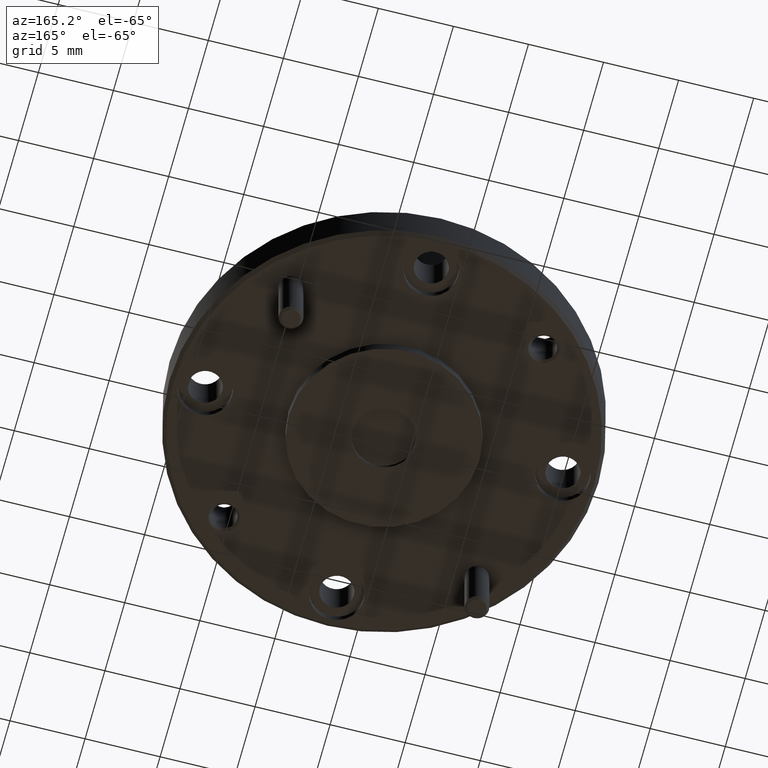
[diagram: clean part render]
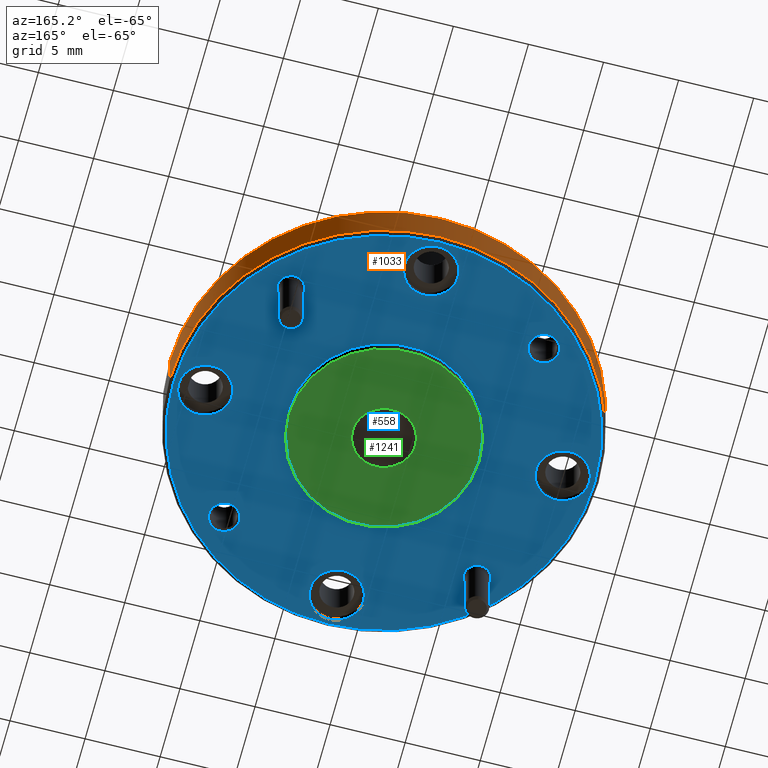
[diagram: same view with three faces highlighted in distinct colors, each labeled with its STEP entity id]
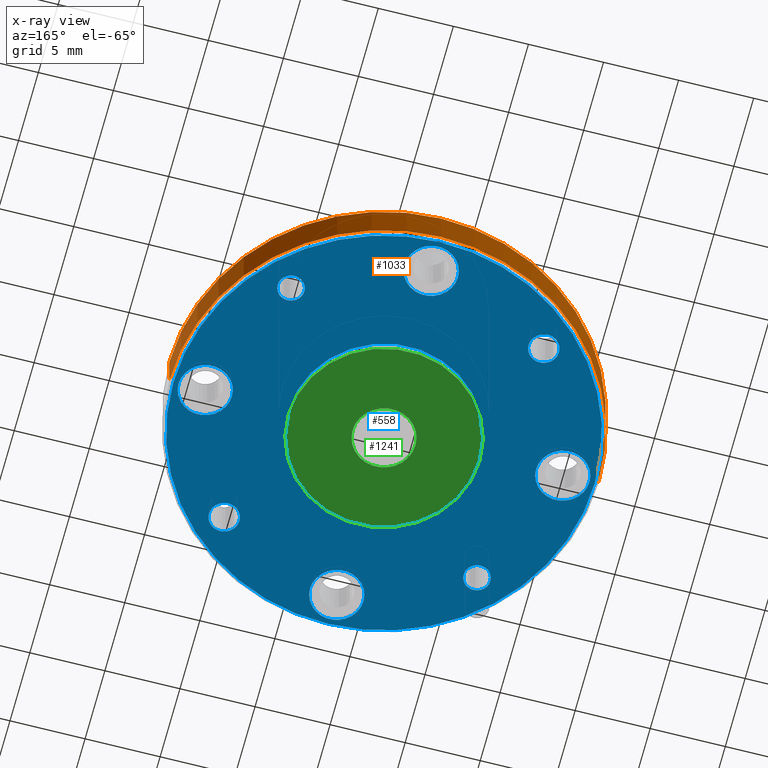
[diagram: x-ray of the same camera — body ghosted, the three highlighted faces saturated]
A machine part, auxiliary view with three faces highlighted in distinct colors.
The next image is the same camera in x-ray (body ghosted, the three faces saturated) — at least one of them is partly hidden behind the body in this view.
Their STEP definitions:

[orange] entity #1033 — the highlighted cylindrical surface (partial cylindrical patch) has radius 14.2875 mm, axis along (-0, -0, 1).
#51 = ORIENTED_EDGE ( 'NONE', *, *, #1716, .F. ) ;
#108 = DIRECTION ( 'NONE',  ( 0.0000000000000000000, 0.0000000000000000000, -1.000000000000000000 ) ) ;
#236 = CARTESIAN_POINT ( 'NONE',  ( 0.05127403736761039500, 0.5322466351666983500, 4.129873547652602300 ) ) ;
#287 = EDGE_LOOP ( 'NONE', ( #974, #866, #381, #51 ) ) ;
#358 = FACE_OUTER_BOUND ( 'NONE', #287, .T. ) ;
#361 = CIRCLE ( 'NONE', #556, 0.5625000000000000000 ) ;
#368 = DIRECTION ( 'NONE',  ( -0.0000000000000000000, -0.0000000000000000000, 1.000000000000000000 ) ) ;
#381 = ORIENTED_EDGE ( 'NONE', *, *, #1962, .T. ) ;
#389 = LINE ( 'NONE', #1621, #744 ) ;
#404 = DIRECTION ( 'NONE',  ( -0.0000000000000000000, -0.0000000000000000000, 1.000000000000000000 ) ) ;
#516 = VECTOR ( 'NONE', #1520, 39.37007874015748100 ) ;
#538 = CARTESIAN_POINT ( 'NONE',  ( 0.05127403736761039500, 0.5322466351666983500, 0.3353271406262704500 ) ) ;
#556 = AXIS2_PLACEMENT_3D ( 'NONE', #538, #368, #1003 ) ;
#637 = EDGE_CURVE ( 'NONE', #1550, #1084, #361, .T. ) ;
#744 = VECTOR ( 'NONE', #1650, 39.37007874015748100 ) ;
#866 = ORIENTED_EDGE ( 'NONE', *, *, #1667, .T. ) ;
#886 = VERTEX_POINT ( 'NONE', #1340 ) ;
#974 = ORIENTED_EDGE ( 'NONE', *, *, #637, .T. ) ;
#1003 = DIRECTION ( 'NONE',  ( 1.000000000000000000, 0.0000000000000000000, 0.0000000000000000000 ) ) ;
#1033 = ADVANCED_FACE ( 'NONE', ( #358 ), #1747, .T. ) ;
#1066 = CARTESIAN_POINT ( 'NONE',  ( 0.05127403736761039500, 0.5322466351666983500, 0.4453271406262706600 ) ) ;
#1084 = VERTEX_POINT ( 'NONE', #1838 ) ;
#1208 = DIRECTION ( 'NONE',  ( -1.000000000000000000, 0.0000000000000000000, 0.0000000000000000000 ) ) ;
#1262 = CARTESIAN_POINT ( 'NONE',  ( 0.6137740373676103800, 0.5322466351666983500, 0.3353271406262704500 ) ) ;
#1340 = CARTESIAN_POINT ( 'NONE',  ( -0.5112259626323896200, 0.5322466351666983500, 0.4453271406262706600 ) ) ;
#1351 = CIRCLE ( 'NONE', #1647, 0.5625000000000000000 ) ;
#1363 = LINE ( 'NONE', #1983, #516 ) ;
#1520 = DIRECTION ( 'NONE',  ( -0.0000000000000000000, -0.0000000000000000000, 1.000000000000000000 ) ) ;
#1550 = VERTEX_POINT ( 'NONE', #1262 ) ;
#1621 = CARTESIAN_POINT ( 'NONE',  ( -0.5112259626323896200, 0.5322466351666983500, 4.129873547652602300 ) ) ;
#1647 = AXIS2_PLACEMENT_3D ( 'NONE', #1066, #108, #1208 ) ;
#1650 = DIRECTION ( 'NONE',  ( -0.0000000000000000000, -0.0000000000000000000, 1.000000000000000000 ) ) ;
#1667 = EDGE_CURVE ( 'NONE', #1084, #886, #389, .T. ) ;
#1716 = EDGE_CURVE ( 'NONE', #1550, #1864, #1363, .T. ) ;
#1747 = CYLINDRICAL_SURFACE ( 'NONE', #2006, 0.5625000000000000000 ) ;
#1838 = CARTESIAN_POINT ( 'NONE',  ( -0.5112259626323896200, 0.5322466351666983500, 0.3353271406262704500 ) ) ;
#1864 = VERTEX_POINT ( 'NONE', #2023 ) ;
#1962 = EDGE_CURVE ( 'NONE', #886, #1864, #1351, .T. ) ;
#1977 = DIRECTION ( 'NONE',  ( 1.000000000000000000, 0.0000000000000000000, 0.0000000000000000000 ) ) ;
#1983 = CARTESIAN_POINT ( 'NONE',  ( 0.6137740373676103800, 0.5322466351666983500, 4.129873547652602300 ) ) ;
#2006 = AXIS2_PLACEMENT_3D ( 'NONE', #236, #404, #1977 ) ;
#2023 = CARTESIAN_POINT ( 'NONE',  ( 0.6137740373676103800, 0.5322466351666983500, 0.4453271406262706600 ) ) ;

[blue] entity #558 — the highlighted planar face has unit normal (0, -0, 1).
#1 = EDGE_CURVE ( 'NONE', #617, #1527, #1108, .T. ) ;
#3 = VERTEX_POINT ( 'NONE', #1561 ) ;
#17 = CARTESIAN_POINT ( 'NONE',  ( 0.3827303410488044900, 0.2007903314855041800, 0.3253271406262702700 ) ) ;
#45 = VERTEX_POINT ( 'NONE', #1119 ) ;
#70 = CIRCLE ( 'NONE', #79, 0.03999999999999998000 ) ;
#72 = ORIENTED_EDGE ( 'NONE', *, *, #138, .F. ) ;
#75 = DIRECTION ( 'NONE',  ( 0.0000000000000000000, 0.0000000000000000000, -1.000000000000000000 ) ) ;
#76 = EDGE_LOOP ( 'NONE', ( #1685, #72 ) ) ;
#79 = AXIS2_PLACEMENT_3D ( 'NONE', #17, #669, #1292 ) ;
#80 = DIRECTION ( 'NONE',  ( -0.0000000000000000000, -0.0000000000000000000, 1.000000000000000000 ) ) ;
#87 = AXIS2_PLACEMENT_3D ( 'NONE', #474, #953, #1418 ) ;
#89 = DIRECTION ( 'NONE',  ( 0.0000000000000000000, 0.0000000000000000000, -1.000000000000000000 ) ) ;
#95 = DIRECTION ( 'NONE',  ( -0.0000000000000000000, -0.0000000000000000000, 1.000000000000000000 ) ) ;
#97 = DIRECTION ( 'NONE',  ( 0.0000000000000000000, 0.0000000000000000000, -1.000000000000000000 ) ) ;
#116 = CIRCLE ( 'NONE', #1442, 0.07000000000000000700 ) ;
#129 = DIRECTION ( 'NONE',  ( -1.000000000000000000, 0.0000000000000000000, 0.0000000000000000000 ) ) ;
#130 = CIRCLE ( 'NONE', #586, 0.03999999999999998000 ) ;
#138 = EDGE_CURVE ( 'NONE', #1597, #1244, #783, .T. ) ;
#168 = FACE_BOUND ( 'NONE', #406, .T. ) ;
#173 = EDGE_CURVE ( 'NONE', #1054, #550, #456, .T. ) ;
#204 = CARTESIAN_POINT ( 'NONE',  ( 0.3012740373676103800, 0.5322466351666983500, 0.3253271406262702700 ) ) ;
#206 = DIRECTION ( 'NONE',  ( -0.0000000000000000000, -0.0000000000000000000, -1.000000000000000000 ) ) ;
#208 = FACE_BOUND ( 'NONE', #975, .T. ) ;
#217 = CARTESIAN_POINT ( 'NONE',  ( -0.2801822663135837300, 0.2007903314855042600, 0.3253271406262704400 ) ) ;
#228 = FACE_BOUND ( 'NONE', #545, .T. ) ;
#233 = AXIS2_PLACEMENT_3D ( 'NONE', #956, #1779, #1614 ) ;
#242 = EDGE_CURVE ( 'NONE', #1987, #1625, #1200, .T. ) ;
#249 = CIRCLE ( 'NONE', #1912, 0.2500000000000000000 ) ;
#259 = DIRECTION ( 'NONE',  ( -1.000000000000000000, 0.0000000000000000000, 0.0000000000000000000 ) ) ;
#305 = CARTESIAN_POINT ( 'NONE',  ( -0.01872596263238960800, 1.000996635166698300, 0.3253271406262704400 ) ) ;
#310 = DIRECTION ( 'NONE',  ( -1.000000000000000000, 0.0000000000000000000, 0.0000000000000000000 ) ) ;
#325 = ORIENTED_EDGE ( 'NONE', *, *, #833, .F. ) ;
#347 = DIRECTION ( 'NONE',  ( -0.0000000000000000000, -0.0000000000000000000, -1.000000000000000000 ) ) ;
#373 = CARTESIAN_POINT ( 'NONE',  ( 0.5200240373676103800, 0.5322466351666983500, 0.3253271406262704400 ) ) ;
#375 = EDGE_LOOP ( 'NONE', ( #432, #619 ) ) ;
#382 = CARTESIAN_POINT ( 'NONE',  ( 0.05127403736761039500, 0.5322466351666983500, 0.3253271406262704400 ) ) ;
#406 = EDGE_LOOP ( 'NONE', ( #961, #452 ) ) ;
#410 = ORIENTED_EDGE ( 'NONE', *, *, #988, .F. ) ;
#413 = DIRECTION ( 'NONE',  ( 0.0000000000000000000, 0.0000000000000000000, -1.000000000000000000 ) ) ;
#423 = AXIS2_PLACEMENT_3D ( 'NONE', #970, #822, #1286 ) ;
#432 = ORIENTED_EDGE ( 'NONE', *, *, #1898, .F. ) ;
#444 = CIRCLE ( 'NONE', #1486, 0.03999999999999998000 ) ;
#451 = CARTESIAN_POINT ( 'NONE',  ( -0.2801822663135837300, 0.8637029388478925100, 0.3253271406262702700 ) ) ;
#452 = ORIENTED_EDGE ( 'NONE', *, *, #1, .F. ) ;
#456 = CIRCLE ( 'NONE', #423, 0.07000000000000000700 ) ;
#460 = DIRECTION ( 'NONE',  ( -0.0000000000000000000, -0.0000000000000000000, -1.000000000000000000 ) ) ;
#473 = DIRECTION ( 'NONE',  ( 0.0000000000000000000, 0.0000000000000000000, -1.000000000000000000 ) ) ;
#474 = CARTESIAN_POINT ( 'NONE',  ( 0.3827303410488044900, 0.8637029388478925100, 0.3253271406262704400 ) ) ;
#484 = CIRCLE ( 'NONE', #1833, 0.5524999999999998800 ) ;
#487 = ORIENTED_EDGE ( 'NONE', *, *, #1215, .F. ) ;
#537 = CARTESIAN_POINT ( 'NONE',  ( -0.4874759626323896300, 0.5322466351666983500, 0.3253271406262704400 ) ) ;
#545 = EDGE_LOOP ( 'NONE', ( #410, #620 ) ) ;
#547 = DIRECTION ( 'NONE',  ( 0.0000000000000000000, 0.0000000000000000000, -1.000000000000000000 ) ) ;
#550 = VERTEX_POINT ( 'NONE', #305 ) ;
#558 = ADVANCED_FACE ( 'NONE', ( #1845, #2044, #2018, #208, #1659, #1061, #228, #1110, #1380, #168 ), #843, .F. ) ;
#566 = DIRECTION ( 'NONE',  ( 1.000000000000000000, 0.0000000000000000000, 0.0000000000000000000 ) ) ;
#580 = ORIENTED_EDGE ( 'NONE', *, *, #655, .F. ) ;
#585 = CARTESIAN_POINT ( 'NONE',  ( 0.1212740373676104000, 1.000996635166698300, 0.3253271406262704400 ) ) ;
#586 = AXIS2_PLACEMENT_3D ( 'NONE', #1906, #1770, #310 ) ;
#617 = VERTEX_POINT ( 'NONE', #674 ) ;
#619 = ORIENTED_EDGE ( 'NONE', *, *, #1333, .F. ) ;
#620 = ORIENTED_EDGE ( 'NONE', *, *, #173, .F. ) ;
#655 = EDGE_CURVE ( 'NONE', #1792, #1475, #1969, .T. ) ;
#665 = DIRECTION ( 'NONE',  ( 0.0000000000000000000, -0.0000000000000000000, 1.000000000000000000 ) ) ;
#668 = EDGE_CURVE ( 'NONE', #1592, #1453, #757, .T. ) ;
#669 = DIRECTION ( 'NONE',  ( -0.0000000000000000000, -0.0000000000000000000, -1.000000000000000000 ) ) ;
#674 = CARTESIAN_POINT ( 'NONE',  ( 0.4177303410488045200, 0.8637029388478925100, 0.3253271406262704400 ) ) ;
#681 = EDGE_CURVE ( 'NONE', #1244, #1597, #1330, .T. ) ;
#686 = EDGE_CURVE ( 'NONE', #3, #1473, #484, .T. ) ;
#698 = CARTESIAN_POINT ( 'NONE',  ( -0.2401822663135837500, 0.8637029388478925100, 0.3253271406262702700 ) ) ;
#704 = AXIS2_PLACEMENT_3D ( 'NONE', #1202, #413, #566 ) ;
#710 = VERTEX_POINT ( 'NONE', #698 ) ;
#741 = ORIENTED_EDGE ( 'NONE', *, *, #1814, .F. ) ;
#749 = AXIS2_PLACEMENT_3D ( 'NONE', #1159, #665, #1787 ) ;
#757 = CIRCLE ( 'NONE', #1554, 0.2500000000000000000 ) ;
#758 = DIRECTION ( 'NONE',  ( 0.0000000000000000000, 0.0000000000000000000, -1.000000000000000000 ) ) ;
#765 = CARTESIAN_POINT ( 'NONE',  ( -0.3474759626323896100, 0.5322466351666983500, 0.3253271406262704400 ) ) ;
#772 = EDGE_LOOP ( 'NONE', ( #1502, #741 ) ) ;
#783 = CIRCLE ( 'NONE', #928, 0.03500000000000003800 ) ;
#788 = EDGE_CURVE ( 'NONE', #1527, #617, #1573, .T. ) ;
#809 = AXIS2_PLACEMENT_3D ( 'NONE', #1872, #473, #1742 ) ;
#810 = ORIENTED_EDGE ( 'NONE', *, *, #686, .T. ) ;
#822 = DIRECTION ( 'NONE',  ( 0.0000000000000000000, 0.0000000000000000000, -1.000000000000000000 ) ) ;
#833 = EDGE_CURVE ( 'NONE', #957, #45, #70, .T. ) ;
#843 = PLANE ( 'NONE',  #749 ) ;
#860 = AXIS2_PLACEMENT_3D ( 'NONE', #373, #75, #1809 ) ;
#871 = EDGE_CURVE ( 'NONE', #1453, #1592, #249, .T. ) ;
#887 = AXIS2_PLACEMENT_3D ( 'NONE', #1024, #1951, #1959 ) ;
#928 = AXIS2_PLACEMENT_3D ( 'NONE', #963, #347, #1774 ) ;
#938 = CARTESIAN_POINT ( 'NONE',  ( 0.3477303410488044600, 0.8637029388478925100, 0.3253271406262704400 ) ) ;
#953 = DIRECTION ( 'NONE',  ( -0.0000000000000000000, -0.0000000000000000000, -1.000000000000000000 ) ) ;
#955 = EDGE_CURVE ( 'NONE', #1473, #3, #1402, .T. ) ;
#956 = CARTESIAN_POINT ( 'NONE',  ( 0.3827303410488044900, 0.8637029388478925100, 0.3253271406262704400 ) ) ;
#957 = VERTEX_POINT ( 'NONE', #1832 ) ;
#961 = ORIENTED_EDGE ( 'NONE', *, *, #788, .F. ) ;
#963 = CARTESIAN_POINT ( 'NONE',  ( -0.2801822663135837300, 0.2007903314855042600, 0.3253271406262704400 ) ) ;
#970 = CARTESIAN_POINT ( 'NONE',  ( 0.05127403736761039500, 1.000996635166698300, 0.3253271406262704400 ) ) ;
#975 = EDGE_LOOP ( 'NONE', ( #1780, #580 ) ) ;
#988 = EDGE_CURVE ( 'NONE', #550, #1054, #116, .T. ) ;
#993 = CIRCLE ( 'NONE', #1722, 0.07000000000000000700 ) ;
#999 = EDGE_LOOP ( 'NONE', ( #487, #1376 ) ) ;
#1012 = CARTESIAN_POINT ( 'NONE',  ( -0.01872596263238960800, 0.06349663516669827600, 0.3253271406262704400 ) ) ;
#1015 = EDGE_CURVE ( 'NONE', #1824, #1188, #1481, .T. ) ;
#1021 = CARTESIAN_POINT ( 'NONE',  ( 0.05127403736761039500, 0.5322466351666983500, 0.3253271406262702700 ) ) ;
#1024 = CARTESIAN_POINT ( 'NONE',  ( 0.05127403736761039500, 0.06349663516669827600, 0.3253271406262704400 ) ) ;
#1043 = DIRECTION ( 'NONE',  ( -1.000000000000000000, 0.0000000000000000000, 0.0000000000000000000 ) ) ;
#1054 = VERTEX_POINT ( 'NONE', #585 ) ;
#1061 = FACE_BOUND ( 'NONE', #772, .T. ) ;
#1108 = CIRCLE ( 'NONE', #87, 0.03500000000000003800 ) ;
#1110 = FACE_BOUND ( 'NONE', #1947, .T. ) ;
#1114 = ORIENTED_EDGE ( 'NONE', *, *, #1504, .F. ) ;
#1119 = CARTESIAN_POINT ( 'NONE',  ( 0.4227303410488044700, 0.2007903314855041800, 0.3253271406262702700 ) ) ;
#1158 = EDGE_LOOP ( 'NONE', ( #325, #1114 ) ) ;
#1159 = CARTESIAN_POINT ( 'NONE',  ( 0.05127403736761039500, 1.094746635166698300, 0.3253271406262704400 ) ) ;
#1188 = VERTEX_POINT ( 'NONE', #765 ) ;
#1200 = CIRCLE ( 'NONE', #887, 0.07000000000000000700 ) ;
#1202 = CARTESIAN_POINT ( 'NONE',  ( 0.05127403736761039500, 0.5322466351666983500, 0.3253271406262704400 ) ) ;
#1215 = EDGE_CURVE ( 'NONE', #1625, #1987, #1411, .T. ) ;
#1235 = CARTESIAN_POINT ( 'NONE',  ( -0.1987259626323895900, 0.5322466351666983500, 0.3253271406262702700 ) ) ;
#1244 = VERTEX_POINT ( 'NONE', #1754 ) ;
#1256 = CARTESIAN_POINT ( 'NONE',  ( -0.3201822663135837100, 0.8637029388478925100, 0.3253271406262702700 ) ) ;
#1286 = DIRECTION ( 'NONE',  ( -1.000000000000000000, 0.0000000000000000000, 0.0000000000000000000 ) ) ;
#1292 = DIRECTION ( 'NONE',  ( -1.000000000000000000, 0.0000000000000000000, 0.0000000000000000000 ) ) ;
#1300 = CARTESIAN_POINT ( 'NONE',  ( -0.2451822663135837200, 0.2007903314855042600, 0.3253271406262704400 ) ) ;
#1328 = DIRECTION ( 'NONE',  ( -1.000000000000000000, 0.0000000000000000000, 0.0000000000000000000 ) ) ;
#1330 = CIRCLE ( 'NONE', #1732, 0.03500000000000003800 ) ;
#1333 = EDGE_CURVE ( 'NONE', #710, #1350, #444, .T. ) ;
#1350 = VERTEX_POINT ( 'NONE', #1256 ) ;
#1361 = CARTESIAN_POINT ( 'NONE',  ( -0.4174759626323896200, 0.5322466351666983500, 0.3253271406262704400 ) ) ;
#1366 = CARTESIAN_POINT ( 'NONE',  ( -0.4174759626323896200, 0.5322466351666983500, 0.3253271406262704400 ) ) ;
#1375 = CARTESIAN_POINT ( 'NONE',  ( -0.2801822663135837300, 0.8637029388478925100, 0.3253271406262702700 ) ) ;
#1376 = ORIENTED_EDGE ( 'NONE', *, *, #242, .F. ) ;
#1380 = FACE_BOUND ( 'NONE', #375, .T. ) ;
#1386 = EDGE_CURVE ( 'NONE', #1475, #1792, #993, .T. ) ;
#1402 = CIRCLE ( 'NONE', #704, 0.5524999999999998800 ) ;
#1411 = CIRCLE ( 'NONE', #809, 0.07000000000000000700 ) ;
#1418 = DIRECTION ( 'NONE',  ( -1.000000000000000000, 0.0000000000000000000, 0.0000000000000000000 ) ) ;
#1442 = AXIS2_PLACEMENT_3D ( 'NONE', #1963, #547, #1981 ) ;
#1453 = VERTEX_POINT ( 'NONE', #1235 ) ;
#1454 = CIRCLE ( 'NONE', #1997, 0.03999999999999998000 ) ;
#1473 = VERTEX_POINT ( 'NONE', #1712 ) ;
#1475 = VERTEX_POINT ( 'NONE', #1545 ) ;
#1481 = CIRCLE ( 'NONE', #1542, 0.07000000000000000700 ) ;
#1486 = AXIS2_PLACEMENT_3D ( 'NONE', #451, #460, #1875 ) ;
#1487 = DIRECTION ( 'NONE',  ( 1.000000000000000000, 0.0000000000000000000, 0.0000000000000000000 ) ) ;
#1490 = DIRECTION ( 'NONE',  ( 0.0000000000000000000, 0.0000000000000000000, -1.000000000000000000 ) ) ;
#1492 = CARTESIAN_POINT ( 'NONE',  ( 0.05127403736761039500, 0.5322466351666983500, 0.3253271406262702700 ) ) ;
#1502 = ORIENTED_EDGE ( 'NONE', *, *, #1015, .F. ) ;
#1504 = EDGE_CURVE ( 'NONE', #45, #957, #130, .T. ) ;
#1511 = CIRCLE ( 'NONE', #1916, 0.07000000000000000700 ) ;
#1527 = VERTEX_POINT ( 'NONE', #938 ) ;
#1542 = AXIS2_PLACEMENT_3D ( 'NONE', #1366, #97, #1675 ) ;
#1545 = CARTESIAN_POINT ( 'NONE',  ( 0.4500240373676104300, 0.5322466351666983500, 0.3253271406262704400 ) ) ;
#1554 = AXIS2_PLACEMENT_3D ( 'NONE', #1021, #80, #1652 ) ;
#1561 = CARTESIAN_POINT ( 'NONE',  ( 0.6037740373676102600, 0.5322466351666983500, 0.3253271406262704400 ) ) ;
#1573 = CIRCLE ( 'NONE', #233, 0.03500000000000003800 ) ;
#1592 = VERTEX_POINT ( 'NONE', #204 ) ;
#1597 = VERTEX_POINT ( 'NONE', #1300 ) ;
#1614 = DIRECTION ( 'NONE',  ( -1.000000000000000000, 0.0000000000000000000, 0.0000000000000000000 ) ) ;
#1625 = VERTEX_POINT ( 'NONE', #1012 ) ;
#1639 = EDGE_LOOP ( 'NONE', ( #810, #1677 ) ) ;
#1652 = DIRECTION ( 'NONE',  ( 1.000000000000000000, 0.0000000000000000000, 0.0000000000000000000 ) ) ;
#1656 = ORIENTED_EDGE ( 'NONE', *, *, #871, .T. ) ;
#1659 = FACE_BOUND ( 'NONE', #999, .T. ) ;
#1675 = DIRECTION ( 'NONE',  ( -1.000000000000000000, 0.0000000000000000000, 0.0000000000000000000 ) ) ;
#1677 = ORIENTED_EDGE ( 'NONE', *, *, #955, .T. ) ;
#1685 = ORIENTED_EDGE ( 'NONE', *, *, #681, .F. ) ;
#1712 = CARTESIAN_POINT ( 'NONE',  ( -0.5012259626323895000, 0.5322466351666983500, 0.3253271406262704400 ) ) ;
#1713 = DIRECTION ( 'NONE',  ( 1.000000000000000000, 0.0000000000000000000, 0.0000000000000000000 ) ) ;
#1722 = AXIS2_PLACEMENT_3D ( 'NONE', #2043, #758, #129 ) ;
#1732 = AXIS2_PLACEMENT_3D ( 'NONE', #217, #206, #1328 ) ;
#1736 = CARTESIAN_POINT ( 'NONE',  ( 0.1212740373676104000, 0.06349663516669829000, 0.3253271406262704400 ) ) ;
#1742 = DIRECTION ( 'NONE',  ( -1.000000000000000000, 0.0000000000000000000, 0.0000000000000000000 ) ) ;
#1754 = CARTESIAN_POINT ( 'NONE',  ( -0.3151822663135837600, 0.2007903314855042600, 0.3253271406262704400 ) ) ;
#1770 = DIRECTION ( 'NONE',  ( -0.0000000000000000000, -0.0000000000000000000, -1.000000000000000000 ) ) ;
#1774 = DIRECTION ( 'NONE',  ( -1.000000000000000000, 0.0000000000000000000, 0.0000000000000000000 ) ) ;
#1779 = DIRECTION ( 'NONE',  ( -0.0000000000000000000, -0.0000000000000000000, -1.000000000000000000 ) ) ;
#1780 = ORIENTED_EDGE ( 'NONE', *, *, #1386, .F. ) ;
#1787 = DIRECTION ( 'NONE',  ( 1.000000000000000000, 0.0000000000000000000, 0.0000000000000000000 ) ) ;
#1792 = VERTEX_POINT ( 'NONE', #1822 ) ;
#1809 = DIRECTION ( 'NONE',  ( -1.000000000000000000, 0.0000000000000000000, 0.0000000000000000000 ) ) ;
#1814 = EDGE_CURVE ( 'NONE', #1188, #1824, #1511, .T. ) ;
#1822 = CARTESIAN_POINT ( 'NONE',  ( 0.5900240373676104400, 0.5322466351666983500, 0.3253271406262704400 ) ) ;
#1824 = VERTEX_POINT ( 'NONE', #537 ) ;
#1832 = CARTESIAN_POINT ( 'NONE',  ( 0.3427303410488045100, 0.2007903314855041800, 0.3253271406262702700 ) ) ;
#1833 = AXIS2_PLACEMENT_3D ( 'NONE', #382, #1490, #1487 ) ;
#1841 = DIRECTION ( 'NONE',  ( -0.0000000000000000000, -0.0000000000000000000, -1.000000000000000000 ) ) ;
#1845 = FACE_OUTER_BOUND ( 'NONE', #1639, .T. ) ;
#1872 = CARTESIAN_POINT ( 'NONE',  ( 0.05127403736761039500, 0.06349663516669827600, 0.3253271406262704400 ) ) ;
#1875 = DIRECTION ( 'NONE',  ( -1.000000000000000000, 0.0000000000000000000, 0.0000000000000000000 ) ) ;
#1898 = EDGE_CURVE ( 'NONE', #1350, #710, #1454, .T. ) ;
#1906 = CARTESIAN_POINT ( 'NONE',  ( 0.3827303410488044900, 0.2007903314855041800, 0.3253271406262702700 ) ) ;
#1912 = AXIS2_PLACEMENT_3D ( 'NONE', #1492, #95, #1713 ) ;
#1916 = AXIS2_PLACEMENT_3D ( 'NONE', #1361, #89, #1043 ) ;
#1947 = EDGE_LOOP ( 'NONE', ( #1985, #1656 ) ) ;
#1951 = DIRECTION ( 'NONE',  ( 0.0000000000000000000, 0.0000000000000000000, -1.000000000000000000 ) ) ;
#1959 = DIRECTION ( 'NONE',  ( -1.000000000000000000, 0.0000000000000000000, 0.0000000000000000000 ) ) ;
#1963 = CARTESIAN_POINT ( 'NONE',  ( 0.05127403736761039500, 1.000996635166698300, 0.3253271406262704400 ) ) ;
#1969 = CIRCLE ( 'NONE', #860, 0.07000000000000000700 ) ;
#1981 = DIRECTION ( 'NONE',  ( -1.000000000000000000, 0.0000000000000000000, 0.0000000000000000000 ) ) ;
#1985 = ORIENTED_EDGE ( 'NONE', *, *, #668, .T. ) ;
#1987 = VERTEX_POINT ( 'NONE', #1736 ) ;
#1997 = AXIS2_PLACEMENT_3D ( 'NONE', #1375, #1841, #259 ) ;
#2018 = FACE_BOUND ( 'NONE', #1158, .T. ) ;
#2043 = CARTESIAN_POINT ( 'NONE',  ( 0.5200240373676103800, 0.5322466351666983500, 0.3253271406262704400 ) ) ;
#2044 = FACE_BOUND ( 'NONE', #76, .T. ) ;

[green] entity #1241 — the highlighted planar face has unit normal (0, -0, 1).
#25 = DIRECTION ( 'NONE',  ( 1.000000000000000000, 0.0000000000000000000, 0.0000000000000000000 ) ) ;
#32 = DIRECTION ( 'NONE',  ( -0.0000000000000000000, -0.0000000000000000000, 1.000000000000000000 ) ) ;
#46 = CIRCLE ( 'NONE', #211, 0.08250000000000000400 ) ;
#61 = CARTESIAN_POINT ( 'NONE',  ( 0.05127403736761039500, 0.5322466351666983500, 0.2953271406262703600 ) ) ;
#90 = CIRCLE ( 'NONE', #740, 0.2500000000000000000 ) ;
#114 = EDGE_CURVE ( 'NONE', #1567, #1358, #46, .T. ) ;
#187 = CIRCLE ( 'NONE', #1283, 0.2500000000000000000 ) ;
#211 = AXIS2_PLACEMENT_3D ( 'NONE', #800, #513, #333 ) ;
#239 = EDGE_CURVE ( 'NONE', #635, #422, #90, .T. ) ;
#319 = ORIENTED_EDGE ( 'NONE', *, *, #114, .T. ) ;
#333 = DIRECTION ( 'NONE',  ( 1.000000000000000000, 0.0000000000000000000, 0.0000000000000000000 ) ) ;
#372 = AXIS2_PLACEMENT_3D ( 'NONE', #490, #32, #25 ) ;
#383 = ORIENTED_EDGE ( 'NONE', *, *, #1293, .T. ) ;
#396 = AXIS2_PLACEMENT_3D ( 'NONE', #469, #1123, #1612 ) ;
#422 = VERTEX_POINT ( 'NONE', #780 ) ;
#469 = CARTESIAN_POINT ( 'NONE',  ( 0.05127403736761039500, 0.7822466351666983500, 0.2953271406262704700 ) ) ;
#478 = CARTESIAN_POINT ( 'NONE',  ( -0.03122596263238961200, 0.5322466351666983500, 0.2953271406262703600 ) ) ;
#490 = CARTESIAN_POINT ( 'NONE',  ( 0.05127403736761039500, 0.5322466351666983500, 0.2953271406262703600 ) ) ;
#513 = DIRECTION ( 'NONE',  ( -0.0000000000000000000, -0.0000000000000000000, 1.000000000000000000 ) ) ;
#554 = ORIENTED_EDGE ( 'NONE', *, *, #239, .F. ) ;
#635 = VERTEX_POINT ( 'NONE', #1622 ) ;
#740 = AXIS2_PLACEMENT_3D ( 'NONE', #61, #1162, #1942 ) ;
#780 = CARTESIAN_POINT ( 'NONE',  ( 0.3012740373676103800, 0.5322466351666983500, 0.2953271406262703600 ) ) ;
#784 = PLANE ( 'NONE',  #396 ) ;
#800 = CARTESIAN_POINT ( 'NONE',  ( 0.05127403736761039500, 0.5322466351666983500, 0.2953271406262703600 ) ) ;
#845 = EDGE_CURVE ( 'NONE', #422, #635, #187, .T. ) ;
#870 = FACE_OUTER_BOUND ( 'NONE', #1379, .T. ) ;
#1091 = CARTESIAN_POINT ( 'NONE',  ( 0.1337740373676104000, 0.5322466351666983500, 0.2953271406262703600 ) ) ;
#1123 = DIRECTION ( 'NONE',  ( 0.0000000000000000000, -0.0000000000000000000, 1.000000000000000000 ) ) ;
#1162 = DIRECTION ( 'NONE',  ( -0.0000000000000000000, -0.0000000000000000000, 1.000000000000000000 ) ) ;
#1241 = ADVANCED_FACE ( 'NONE', ( #870, #1788 ), #784, .F. ) ;
#1283 = AXIS2_PLACEMENT_3D ( 'NONE', #1289, #1608, #1755 ) ;
#1289 = CARTESIAN_POINT ( 'NONE',  ( 0.05127403736761039500, 0.5322466351666983500, 0.2953271406262703600 ) ) ;
#1293 = EDGE_CURVE ( 'NONE', #1358, #1567, #1690, .T. ) ;
#1358 = VERTEX_POINT ( 'NONE', #1091 ) ;
#1379 = EDGE_LOOP ( 'NONE', ( #1381, #554 ) ) ;
#1381 = ORIENTED_EDGE ( 'NONE', *, *, #845, .F. ) ;
#1567 = VERTEX_POINT ( 'NONE', #478 ) ;
#1608 = DIRECTION ( 'NONE',  ( -0.0000000000000000000, -0.0000000000000000000, 1.000000000000000000 ) ) ;
#1612 = DIRECTION ( 'NONE',  ( 1.000000000000000000, 0.0000000000000000000, 0.0000000000000000000 ) ) ;
#1622 = CARTESIAN_POINT ( 'NONE',  ( -0.1987259626323895900, 0.5322466351666983500, 0.2953271406262703600 ) ) ;
#1690 = CIRCLE ( 'NONE', #372, 0.08250000000000000400 ) ;
#1740 = EDGE_LOOP ( 'NONE', ( #383, #319 ) ) ;
#1755 = DIRECTION ( 'NONE',  ( 1.000000000000000000, 0.0000000000000000000, 0.0000000000000000000 ) ) ;
#1788 = FACE_BOUND ( 'NONE', #1740, .T. ) ;
#1942 = DIRECTION ( 'NONE',  ( 1.000000000000000000, 0.0000000000000000000, 0.0000000000000000000 ) ) ;